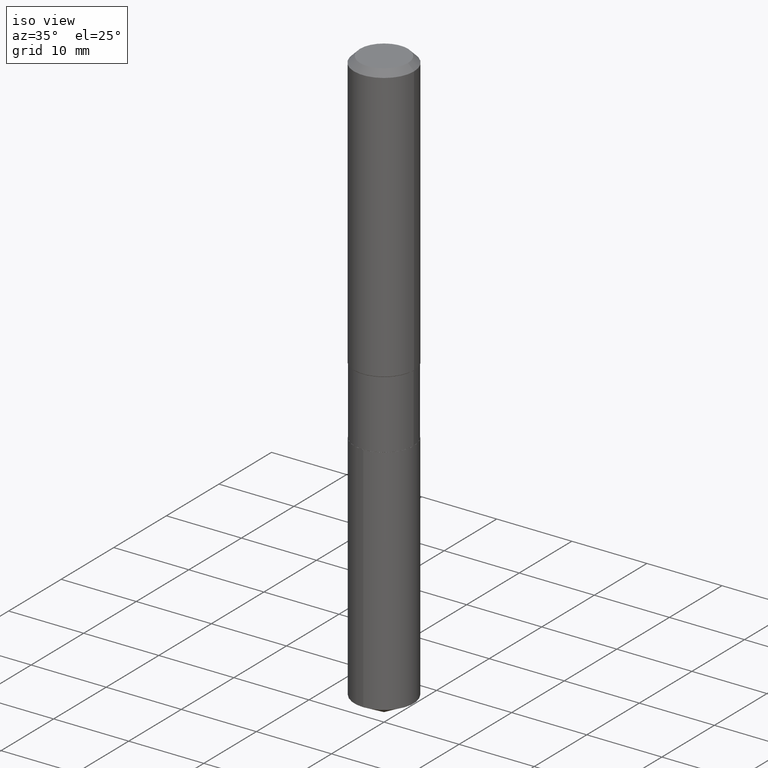
[diagram: clean part render]
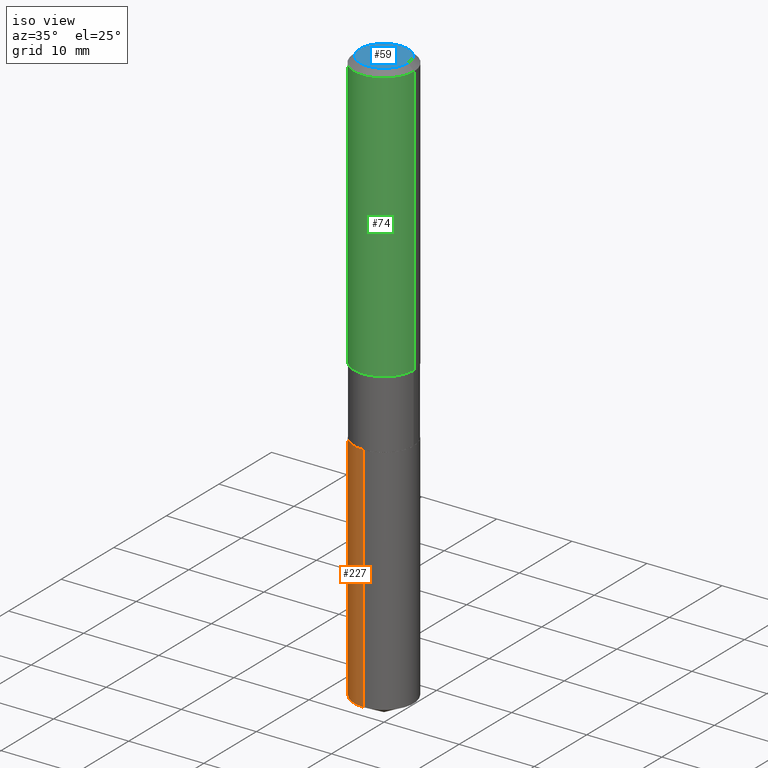
[diagram: same view with three faces highlighted in distinct colors, each labeled with its STEP entity id]
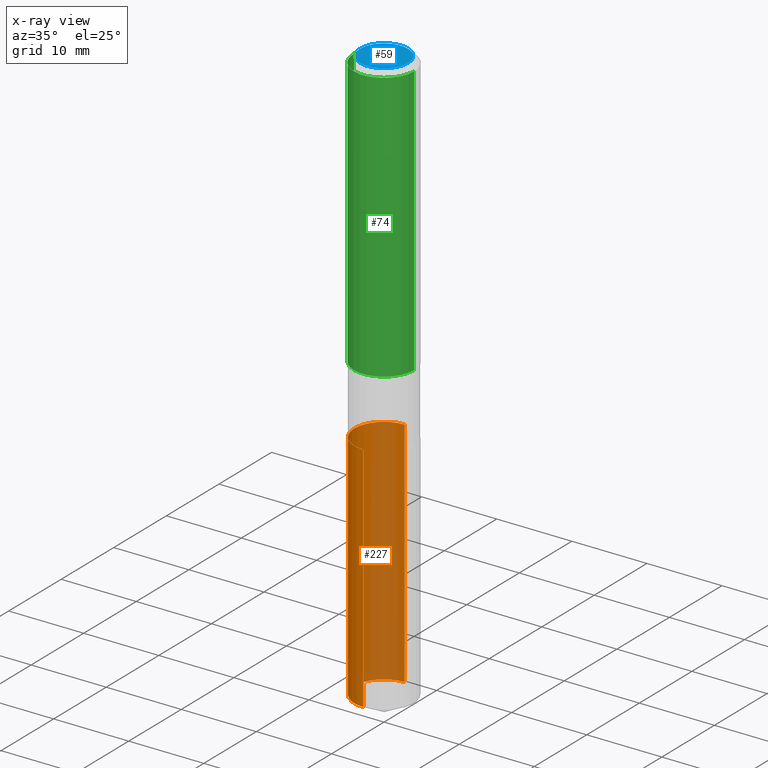
[diagram: x-ray of the same camera — body ghosted, the three highlighted faces saturated]
A machine part, iso view with three faces highlighted in distinct colors.
The next image is the same camera in x-ray (body ghosted, the three faces saturated) — at least one of them is partly hidden behind the body in this view.
Their STEP definitions:

[orange] entity #227 — the highlighted cylindrical surface (edge-blend (fillet) strip) has radius 3.9497 mm, axis along (-0, 0, 1).
#4 = EDGE_CURVE ( 'NONE', #240, #433, #45, .T. ) ;
#7 = LINE ( 'NONE', #466, #361 ) ;
#32 = EDGE_CURVE ( 'NONE', #442, #433, #400, .T. ) ;
#33 = AXIS2_PLACEMENT_3D ( 'NONE', #79, #223, #409 ) ;
#34 = ORIENTED_EDGE ( 'NONE', *, *, #4, .F. ) ;
#35 = AXIS2_PLACEMENT_3D ( 'NONE', #269, #131, #199 ) ;
#45 = CIRCLE ( 'NONE', #33, 0.1554999999999999993 ) ;
#47 = CYLINDRICAL_SURFACE ( 'NONE', #35, 0.1554999999999999993 ) ;
#50 = FACE_OUTER_BOUND ( 'NONE', #167, .T. ) ;
#54 = VECTOR ( 'NONE', #175, 39.37007874015748143 ) ;
#77 = VERTEX_POINT ( 'NONE', #108 ) ;
#79 = CARTESIAN_POINT ( 'NONE',  ( 4.418962132776540947E-29, -6.309106779289563178E-15, -1.806999999999999940 ) ) ;
#89 = DIRECTION ( 'NONE',  ( -2.445564275937818742E-29, 3.491344620723504179E-15, 1.000000000000000000 ) ) ;
#108 = CARTESIAN_POINT ( 'NONE',  ( 1.104893954107029543E-15, 0.1554999999999894245, -3.027519183376641276 ) ) ;
#127 = EDGE_CURVE ( 'NONE', #77, #442, #210, .T. ) ;
#131 = DIRECTION ( 'NONE',  ( -2.445564275937818461E-29, 3.491344620723504179E-15, 1.000000000000000000 ) ) ;
#167 = EDGE_LOOP ( 'NONE', ( #205, #431, #190, #34 ) ) ;
#175 = DIRECTION ( 'NONE',  ( -2.445564275937818742E-29, 3.491344620723504179E-15, 1.000000000000000000 ) ) ;
#186 = CARTESIAN_POINT ( 'NONE',  ( -1.085850696380170092E-15, -0.1555000000000062998, -1.806999999999999273 ) ) ;
#190 = ORIENTED_EDGE ( 'NONE', *, *, #32, .T. ) ;
#199 = DIRECTION ( 'NONE',  ( -6.982962677686265133E-15, -1.000000000000000000, 3.513630860018345064E-15 ) ) ;
#205 = ORIENTED_EDGE ( 'NONE', *, *, #213, .F. ) ;
#210 = CIRCLE ( 'NONE', #484, 0.1554999999999999993 ) ;
#213 = EDGE_CURVE ( 'NONE', #77, #240, #7, .T. ) ;
#223 = DIRECTION ( 'NONE',  ( -2.445564275937818461E-29, 3.491344620723504179E-15, 1.000000000000000000 ) ) ;
#227 = ADVANCED_FACE ( 'NONE', ( #50 ), #47, .T. ) ;
#240 = VERTEX_POINT ( 'NONE', #386 ) ;
#248 = DIRECTION ( 'NONE',  ( -2.445564275937818461E-29, 3.491344620723504179E-15, 1.000000000000000000 ) ) ;
#269 = CARTESIAN_POINT ( 'NONE',  ( 4.418962132776540947E-29, -6.309106779289563178E-15, -1.806999999999999940 ) ) ;
#324 = CARTESIAN_POINT ( 'NONE',  ( -1.085850696380140313E-15, -0.1555000000000105465, -3.027519183376639944 ) ) ;
#361 = VECTOR ( 'NONE', #89, 39.37007874015748143 ) ;
#386 = CARTESIAN_POINT ( 'NONE',  ( 1.104893954107029740E-15, 0.1554999999999936711, -1.807000000000000384 ) ) ;
#400 = LINE ( 'NONE', #186, #54 ) ;
#403 = DIRECTION ( 'NONE',  ( -6.982962677686265133E-15, -1.000000000000000000, 3.513630860018345064E-15 ) ) ;
#409 = DIRECTION ( 'NONE',  ( -6.982962677686265133E-15, -1.000000000000000000, 3.513630860018345064E-15 ) ) ;
#431 = ORIENTED_EDGE ( 'NONE', *, *, #127, .T. ) ;
#433 = VERTEX_POINT ( 'NONE', #470 ) ;
#438 = CARTESIAN_POINT ( 'NONE',  ( 7.403820245739254585E-29, -1.057035986466144148E-14, -3.027519183376640832 ) ) ;
#442 = VERTEX_POINT ( 'NONE', #324 ) ;
#466 = CARTESIAN_POINT ( 'NONE',  ( 1.104893954106999566E-15, 0.1554999999999936711, -1.807000000000000384 ) ) ;
#470 = CARTESIAN_POINT ( 'NONE',  ( -1.085850696380170092E-15, -0.1555000000000062998, -1.806999999999999273 ) ) ;
#484 = AXIS2_PLACEMENT_3D ( 'NONE', #438, #248, #403 ) ;

[blue] entity #59 — the highlighted planar face has unit normal (0, -0, -1).
#56 = ORIENTED_EDGE ( 'NONE', *, *, #66, .T. ) ;
#59 = ADVANCED_FACE ( 'NONE', ( #214 ), #487, .F. ) ;
#62 = CARTESIAN_POINT ( 'NONE',  ( 0.1260000000000000009, -1.027466422270894443E-15, 3.860086710919128072E-18 ) ) ;
#66 = EDGE_CURVE ( 'NONE', #454, #476, #275, .T. ) ;
#132 = EDGE_LOOP ( 'NONE', ( #397, #56 ) ) ;
#150 = AXIS2_PLACEMENT_3D ( 'NONE', #332, #448, #488 ) ;
#159 = DIRECTION ( 'NONE',  ( -2.445468806185136597E-29, 3.491481338843145583E-15, 1.000000000000000000 ) ) ;
#171 = CIRCLE ( 'NONE', #287, 0.1260000000000000009 ) ;
#214 = FACE_OUTER_BOUND ( 'NONE', #132, .T. ) ;
#275 = CIRCLE ( 'NONE', #319, 0.1260000000000000009 ) ;
#287 = AXIS2_PLACEMENT_3D ( 'NONE', #340, #159, #307 ) ;
#292 = DIRECTION ( 'NONE',  ( -2.445468806185136597E-29, 3.491481338843145583E-15, 1.000000000000000000 ) ) ;
#307 = DIRECTION ( 'NONE',  ( 1.000000000000000000, -6.982962677686265922E-15, 4.876281427513067258E-29 ) ) ;
#319 = AXIS2_PLACEMENT_3D ( 'NONE', #450, #292, #473 ) ;
#332 = CARTESIAN_POINT ( 'NONE',  ( -4.719860820353100843E-47, 6.738710358733633822E-33, 1.930043355456229866E-18 ) ) ;
#340 = CARTESIAN_POINT ( 'NONE',  ( -9.439721640706201686E-47, 1.347742071746726764E-32, 3.860086710912459732E-18 ) ) ;
#346 = EDGE_CURVE ( 'NONE', #476, #454, #171, .T. ) ;
#397 = ORIENTED_EDGE ( 'NONE', *, *, #346, .T. ) ;
#402 = CARTESIAN_POINT ( 'NONE',  ( -0.1260000000000000009, 9.348441284752484904E-16, 3.860086710906114178E-18 ) ) ;
#448 = DIRECTION ( 'NONE',  ( 2.438088387897960049E-29, -3.491481338843145188E-15, -1.000000000000000000 ) ) ;
#450 = CARTESIAN_POINT ( 'NONE',  ( -9.439721640706201686E-47, 1.347742071746726764E-32, 3.860086710912459732E-18 ) ) ;
#454 = VERTEX_POINT ( 'NONE', #62 ) ;
#473 = DIRECTION ( 'NONE',  ( 1.000000000000000000, -6.982962677686265922E-15, 4.876281427513067258E-29 ) ) ;
#476 = VERTEX_POINT ( 'NONE', #402 ) ;
#487 = PLANE ( 'NONE',  #150 ) ;
#488 = DIRECTION ( 'NONE',  ( -1.000000000000000000, 6.982962677686265922E-15, -4.876176775795935793E-29 ) ) ;

[green] entity #74 — the highlighted cylindrical surface (partial cylindrical patch) has radius 4.0005 mm, axis along (-0, 0, 1).
#13 = AXIS2_PLACEMENT_3D ( 'NONE', #81, #197, #225 ) ;
#52 = VERTEX_POINT ( 'NONE', #144 ) ;
#65 = CARTESIAN_POINT ( 'NONE',  ( 0.000000000000000000, 0.000000000000000000, 0.000000000000000000 ) ) ;
#69 = CARTESIAN_POINT ( 'NONE',  ( 0.1575000000000000011, -1.209798283909146741E-15, -0.03150000000000019451 ) ) ;
#74 = ADVANCED_FACE ( 'NONE', ( #102 ), #363, .T. ) ;
#76 = CARTESIAN_POINT ( 'NONE',  ( -0.1575000000000000844, 1.119104808822158392E-15, -7.747322767151481189E-30 ) ) ;
#81 = CARTESIAN_POINT ( 'NONE',  ( 7.703226739483226971E-31, -1.099816621735597538E-16, -0.03150000000000019451 ) ) ;
#86 = VERTEX_POINT ( 'NONE', #69 ) ;
#100 = EDGE_CURVE ( 'NONE', #467, #52, #219, .T. ) ;
#102 = FACE_OUTER_BOUND ( 'NONE', #345, .T. ) ;
#105 = AXIS2_PLACEMENT_3D ( 'NONE', #65, #453, #141 ) ;
#115 = DIRECTION ( 'NONE',  ( -2.445468806185136877E-29, 3.491481338843145188E-15, 1.000000000000000000 ) ) ;
#130 = ORIENTED_EDGE ( 'NONE', *, *, #100, .F. ) ;
#141 = DIRECTION ( 'NONE',  ( 1.000000000000000000, -6.982962677686267499E-15, 4.876176775795936353E-29 ) ) ;
#144 = CARTESIAN_POINT ( 'NONE',  ( -0.1575000000000000011, -1.462496493118463440E-15, -0.03150000000000019451 ) ) ;
#189 = CARTESIAN_POINT ( 'NONE',  ( 3.539327003191747834E-29, -5.053220941707684601E-15, -1.447299999999999809 ) ) ;
#197 = DIRECTION ( 'NONE',  ( -2.445468806185136597E-29, 3.491481338843145583E-15, 1.000000000000000000 ) ) ;
#198 = VERTEX_POINT ( 'NONE', #234 ) ;
#219 = LINE ( 'NONE', #76, #291 ) ;
#225 = DIRECTION ( 'NONE',  ( 1.000000000000000000, -6.982962677686265922E-15, 0.000000000000000000 ) ) ;
#230 = AXIS2_PLACEMENT_3D ( 'NONE', #189, #455, #337 ) ;
#234 = CARTESIAN_POINT ( 'NONE',  ( 0.1575000000000001676, -6.153037563443272081E-15, -1.447299999999999809 ) ) ;
#235 = DIRECTION ( 'NONE',  ( -2.445468806185136877E-29, 3.491481338843145188E-15, 1.000000000000000000 ) ) ;
#254 = EDGE_CURVE ( 'NONE', #52, #86, #258, .T. ) ;
#258 = CIRCLE ( 'NONE', #13, 0.1575000000000000011 ) ;
#268 = VECTOR ( 'NONE', #235, 39.37007874015748143 ) ;
#270 = ORIENTED_EDGE ( 'NONE', *, *, #370, .T. ) ;
#282 = CARTESIAN_POINT ( 'NONE',  ( -0.1575000000000001676, -3.934116132885524631E-15, -1.447299999999999809 ) ) ;
#290 = EDGE_CURVE ( 'NONE', #467, #198, #485, .T. ) ;
#291 = VECTOR ( 'NONE', #115, 39.37007874015748143 ) ;
#311 = ORIENTED_EDGE ( 'NONE', *, *, #254, .F. ) ;
#337 = DIRECTION ( 'NONE',  ( 1.000000000000000000, -6.982962677686267499E-15, 0.000000000000000000 ) ) ;
#345 = EDGE_LOOP ( 'NONE', ( #130, #358, #270, #311 ) ) ;
#358 = ORIENTED_EDGE ( 'NONE', *, *, #290, .T. ) ;
#363 = CYLINDRICAL_SURFACE ( 'NONE', #105, 0.1575000000000000844 ) ;
#370 = EDGE_CURVE ( 'NONE', #198, #86, #441, .T. ) ;
#434 = CARTESIAN_POINT ( 'NONE',  ( 0.1575000000000000844, -1.099816621735587677E-15, 7.679978421878603638E-30 ) ) ;
#441 = LINE ( 'NONE', #434, #268 ) ;
#453 = DIRECTION ( 'NONE',  ( -2.445468806185136597E-29, 3.491481338843145583E-15, 1.000000000000000000 ) ) ;
#455 = DIRECTION ( 'NONE',  ( -2.445468806185136597E-29, 3.491481338843145583E-15, 1.000000000000000000 ) ) ;
#467 = VERTEX_POINT ( 'NONE', #282 ) ;
#485 = CIRCLE ( 'NONE', #230, 0.1575000000000001676 ) ;